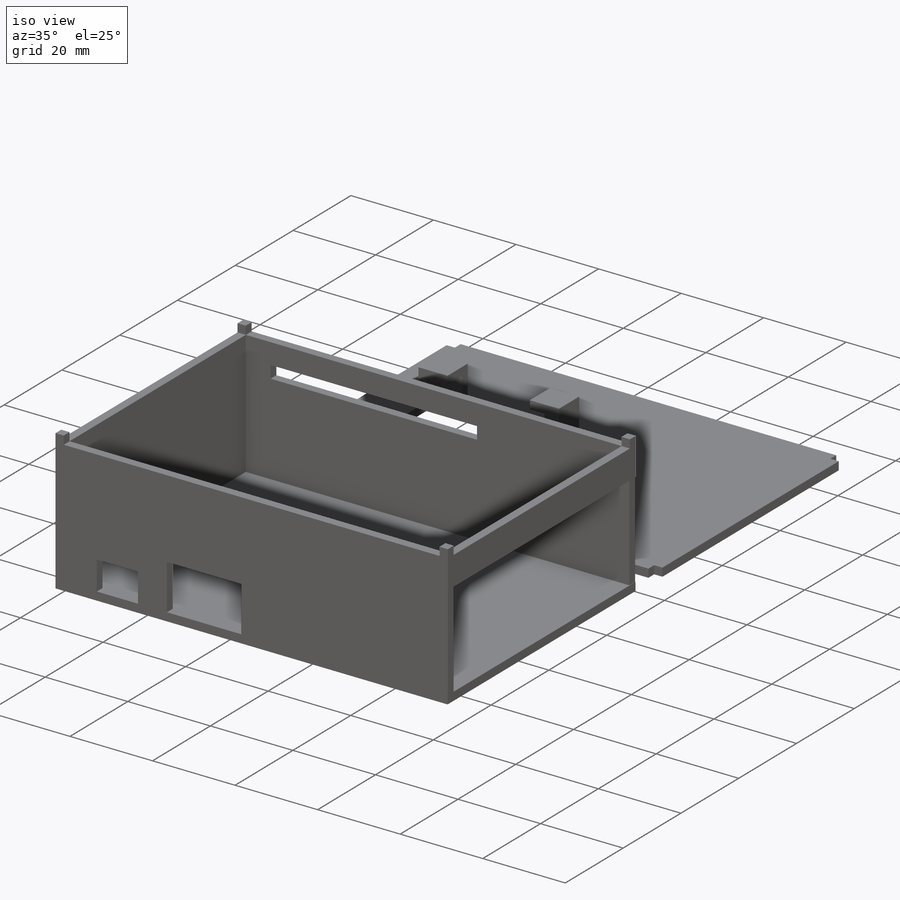
[diagram: iso view]
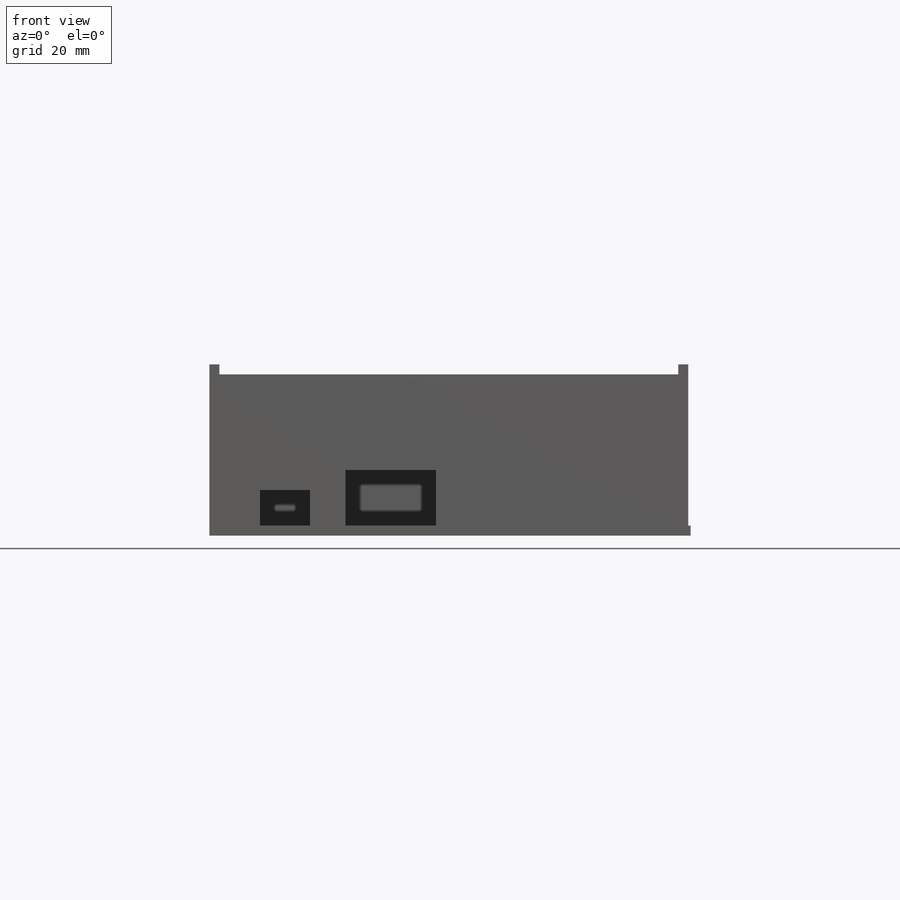
[diagram: front view]
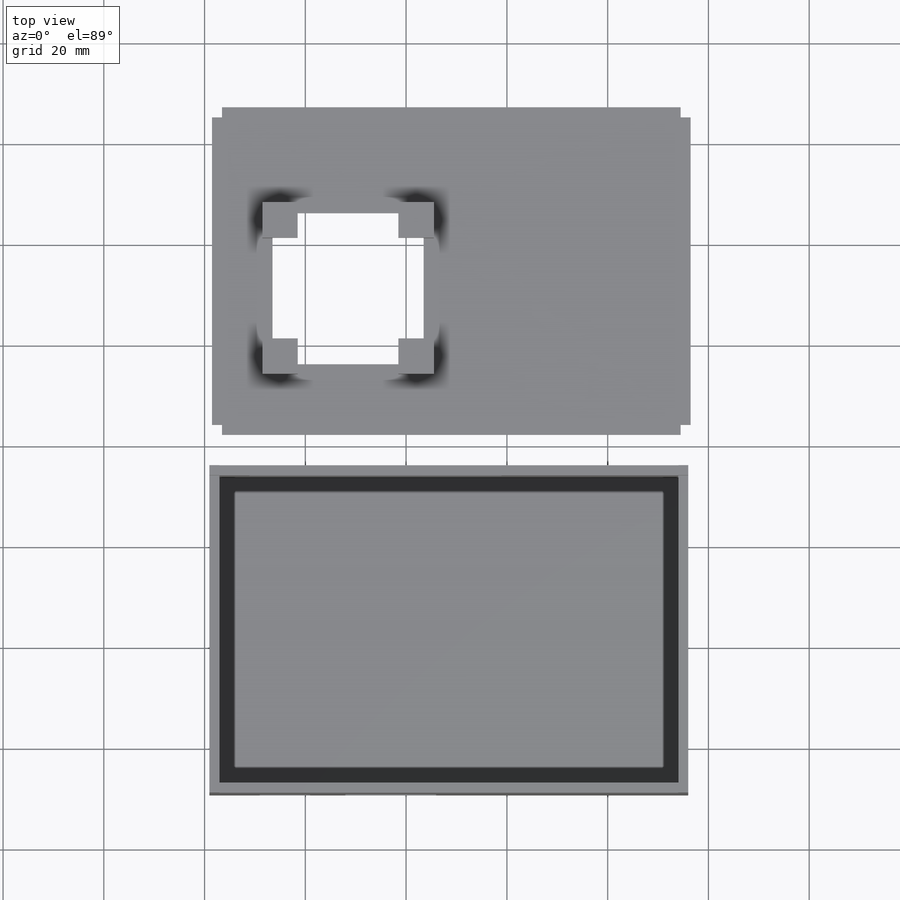
[diagram: top view]
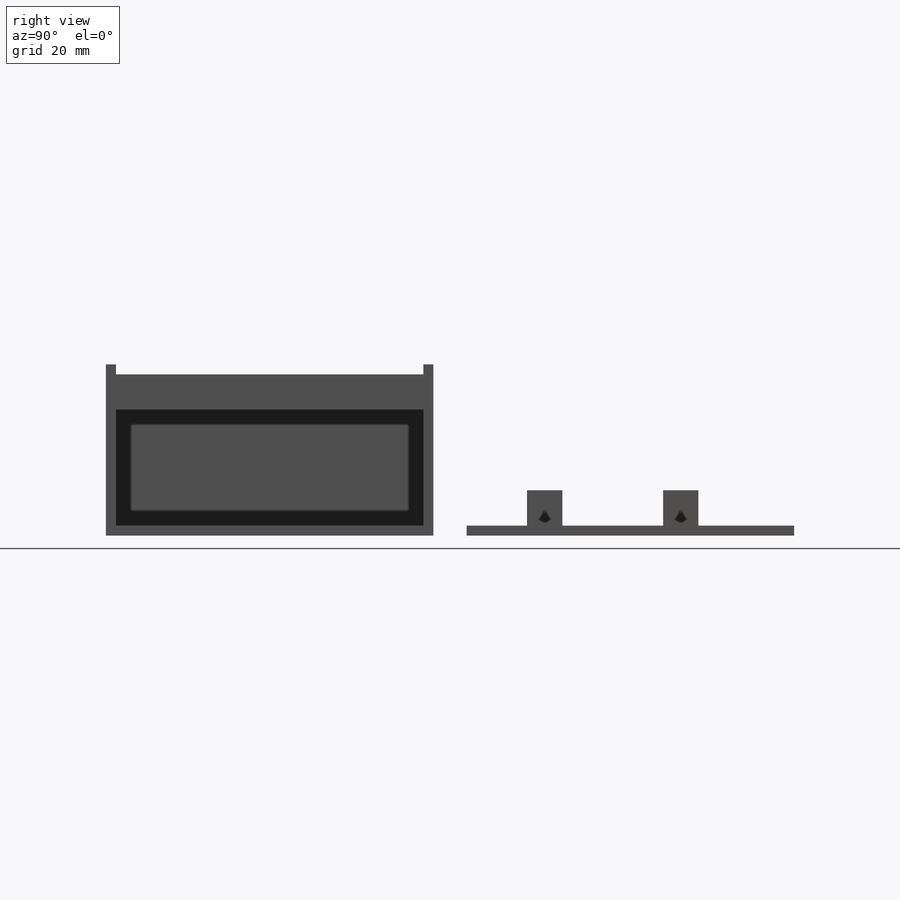
[diagram: right view]
SOLIDWORKS PART (.sldprt)
format: sldprt  version: not decoded by parser v0  size: 561,152 bytes
history: native  units: mm
features: sketch x26, extrude x20, cut_extrude x6, plane x4, pattern_linear x4, material x1 (+9 scaffold rows collapsed)
feature tree (70):
  scaffold x9  (default folders/planes/origin — collapsed)
  material  "Matériau <non spécifié>"
  plane  "Plan de face"
  plane  "Plan de dessus"
  plane  "Plan de droite"
  sketch  "Esquisse1"  dims[D1=95.0mm D2=65.0mm]
  extrude  "Boss.-Extru.1"  Depth=2mm
  sketch  "Esquisse22"  dims[D1=65.0mm D2=30.0mm]
  extrude  "Boss.-Extru.6"  Depth=2mm
  sketch  "Esquisse23"
  extrude  "Boss.-Extru.7"  Depth=2mm
  plane  "Plan1"
  sketch  "Esquisse26"
  extrude  "Boss.-Extru.8"  Depth=2mm
  sketch  "Esquisse27"  dims[D1=10.0mm D2=2.0mm D3=7.0mm D4=10.0mm]
  cut_extrude  "Enlèv. mat.-Extru.4"  Depth=2mm
  sketch  "Esquisse28"  dims[D1=7.0mm D2=11.0mm D3=18.0mm]
  cut_extrude  "Enlèv. mat.-Extru.5"  Depth=2mm
  sketch  "Esquisse30"  dims[D1=65.0mm D2=7.0mm]
  extrude  "Boss.-Extru.9"  Depth=2mm
  sketch  "Esquisse31"  dims[D1=65.0mm D2=95.0mm]
  extrude  "Boss.-Extru.11"  Depth=2mm
  sketch  "Esquisse32"
  extrude  "Boss.-Extru.12"  Depth=2mm
  pattern_linear  "Répétition linéaire1"  Count1=2 Count2=1 Spacing1=63mm Spacing2=10mm
  sketch  "Esquisse33"
  extrude  "Boss.-Extru.13"  Depth=2mm
  pattern_linear  "Répétition linéaire4"  Count1=2 Count2=1 Spacing1=63mm Spacing2=10mm
  sketch  "Esquisse34"  dims[D1=2.0mm D2=2.0mm]
  cut_extrude  "Enlèv. mat.-Extru.6"  Depth=2mm
  pattern_linear  "Répétition linéaire5"  Count1=2 Count2=1 Spacing1=63mm Spacing2=10mm
  sketch  "Esquisse35"  dims[D1=2.0mm D2=2.0mm]
  cut_extrude  "Enlèv. mat.-Extru.7"  Depth=2mm
  pattern_linear  "Répétition linéaire7"  Count1=2 Count2=1 Spacing1=63mm Spacing2=10mm
  sketch  "Esquisse36"  dims[D1=12.0mm D2=10.0mm D3=30.0mm D4=30.0mm]
  cut_extrude  "Enlèv. mat.-Extru.8"  Depth=2mm
  sketch  "Esquisse37"  dims[D1=7.0mm D2=5.0mm]
  extrude  "Boss.-Extru.14"  Depth=2mm
  sketch  "Esquisse38"  dims[D1=7.0mm]
  extrude  "Boss.-Extru.15"  Depth=2mm
  sketch  "Esquisse39"
  extrude  "Boss.-Extru.16"  Depth=2mm
  sketch  "Esquisse40"  dims[D1=7.0mm D2=5.0mm]
  extrude  "Boss.-Extru.17"  Depth=2mm
  sketch  "Esquisse41"  dims[D1=7.0mm]
  extrude  "Boss.-Extru.19"  Depth=2mm
  sketch  "Esquisse43"
  extrude  "Boss.-Extru.20"  Depth=2mm
  sketch  "Esquisse44"  dims[D1=5.0mm D2=7.0mm]
  extrude  "Boss.-Extru.21"  Depth=2mm
  sketch  "Esquisse45"  dims[D1=7.0mm D2=7.0mm]
  extrude  "Boss.-Extru.22"  Depth=2mm
  sketch  "Esquisse46"
  extrude  "Boss.-Extru.23"  Depth=2mm
  sketch  "Esquisse48"  dims[D1=7.0mm D2=5.0mm]
  extrude  "Boss.-Extru.24"  Depth=2mm
  sketch  "Esquisse49"  dims[D1=7.0mm D2=7.0mm]
  extrude  "Boss.-Extru.25"  Depth=2mm
  sketch  "Esquisse50"
  extrude  "Boss.-Extru.26"  Depth=2mm
  sketch  "Esquisse51"  dims[D1=24.0mm D2=8.0mm D3=3.0mm D4=50.0mm]
  cut_extrude  "Enlèv. mat.-Extru.9"  Depth=2mm
decode coverage: 48 of 56 modeling features carry decoded parameters
note: suppression state not decoded; provenance and decode notes live in map.json
